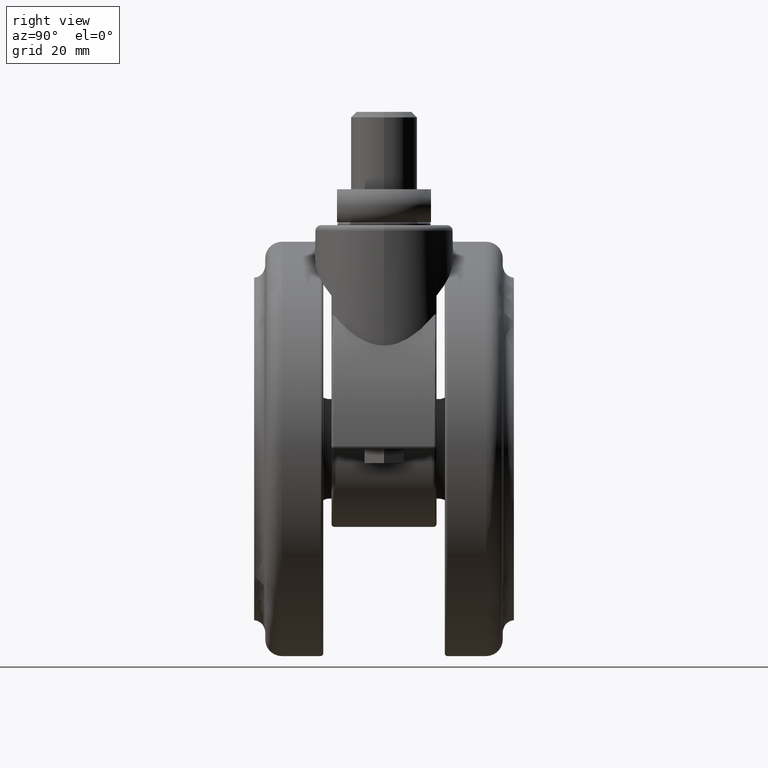
[diagram: clean part render]
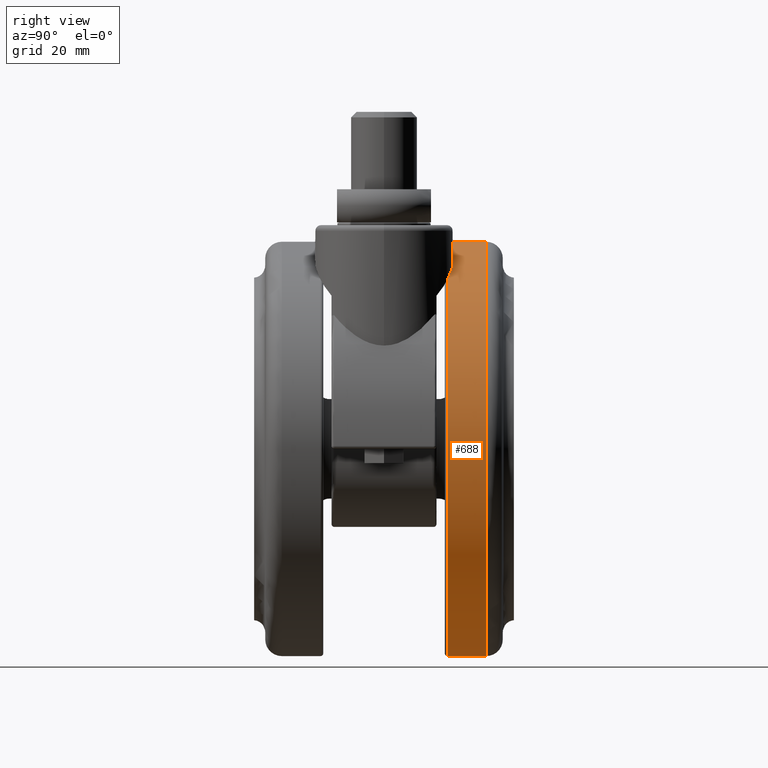
[diagram: same view with one face highlighted and labeled with its STEP entity id]
A machine part, right view. The second image highlights one B-rep face of the part: STEP entity #688.
In plain terms, the highlighted cylindrical surface (partial cylindrical patch) has radius 37.5 mm, axis along (0, 1, 0).
Its self-contained STEP definition (entity closure, byte-faithful):
#391 = EDGE_CURVE ( 'NONE', #2651, #3713, #1343, .T. ) ;
#553 = FACE_OUTER_BOUND ( 'NONE', #1284, .T. ) ;
#688 = ADVANCED_FACE ( 'NONE', ( #553 ), #2105, .T. ) ;
#971 = EDGE_CURVE ( 'NONE', #1869, #2651, #2149, .T. ) ;
#1137 = ORIENTED_EDGE ( 'NONE', *, *, #1977, .T. ) ;
#1250 = VECTOR ( 'NONE', #1729, 1000.000000000000000 ) ;
#1284 = EDGE_LOOP ( 'NONE', ( #1882, #3481, #1137, #1979 ) ) ;
#1343 = LINE ( 'NONE', #2685, #2058 ) ;
#1729 = DIRECTION ( 'NONE',  ( 1.582413479254075000E-015, 1.000000000000000000, 0.0000000000000000000 ) ) ;
#1755 = CARTESIAN_POINT ( 'NONE',  ( -20.00000000000000000, 11.50000000000000000, -78.00000000000000000 ) ) ;
#1772 = CARTESIAN_POINT ( 'NONE',  ( -20.00000000000000000, 3.164826958508150300E-014, -40.50000000000000000 ) ) ;
#1794 = CARTESIAN_POINT ( 'NONE',  ( -20.00000000000000000, 18.50000000000000000, -40.50000000000000000 ) ) ;
#1869 = VERTEX_POINT ( 'NONE', #1755 ) ;
#1872 = DIRECTION ( 'NONE',  ( 0.0000000000000000000, 0.0000000000000000000, -1.000000000000000000 ) ) ;
#1882 = ORIENTED_EDGE ( 'NONE', *, *, #391, .F. ) ;
#1977 = EDGE_CURVE ( 'NONE', #1869, #2777, #2883, .T. ) ;
#1979 = ORIENTED_EDGE ( 'NONE', *, *, #2290, .T. ) ;
#2058 = VECTOR ( 'NONE', #2667, 1000.000000000000000 ) ;
#2094 = CARTESIAN_POINT ( 'NONE',  ( -20.00000000000000000, 18.50000000000000000, -78.00000000000001400 ) ) ;
#2098 = DIRECTION ( 'NONE',  ( 0.0000000000000000000, 0.0000000000000000000, -1.000000000000000000 ) ) ;
#2100 = AXIS2_PLACEMENT_3D ( 'NONE', #1794, #3905, #2098 ) ;
#2105 = CYLINDRICAL_SURFACE ( 'NONE', #3527, 37.50000000000000000 ) ;
#2149 = CIRCLE ( 'NONE', #3460, 37.50000000000000000 ) ;
#2290 = EDGE_CURVE ( 'NONE', #2777, #3713, #2830, .T. ) ;
#2520 = DIRECTION ( 'NONE',  ( 1.582413479254075000E-015, 1.000000000000000000, 0.0000000000000000000 ) ) ;
#2651 = VERTEX_POINT ( 'NONE', #3834 ) ;
#2667 = DIRECTION ( 'NONE',  ( 1.582413479254075000E-015, 1.000000000000000000, 0.0000000000000000000 ) ) ;
#2685 = CARTESIAN_POINT ( 'NONE',  ( -20.00000000000000400, 3.164826958508150900E-014, -3.000000000000002700 ) ) ;
#2775 = DIRECTION ( 'NONE',  ( 0.0000000000000000000, 0.0000000000000000000, -1.000000000000000000 ) ) ;
#2777 = VERTEX_POINT ( 'NONE', #2094 ) ;
#2830 = CIRCLE ( 'NONE', #2100, 37.50000000000000000 ) ;
#2849 = DIRECTION ( 'NONE',  ( -1.582413479254075000E-015, -1.000000000000000000, 0.0000000000000000000 ) ) ;
#2858 = CARTESIAN_POINT ( 'NONE',  ( -20.00000000000000000, 11.50000000000000000, -40.50000000000000000 ) ) ;
#2883 = LINE ( 'NONE', #3076, #1250 ) ;
#3076 = CARTESIAN_POINT ( 'NONE',  ( -20.00000000000000000, 3.164826958508150300E-014, -78.00000000000000000 ) ) ;
#3399 = CARTESIAN_POINT ( 'NONE',  ( -20.00000000000000400, 18.50000000000000000, -3.000000000000000400 ) ) ;
#3460 = AXIS2_PLACEMENT_3D ( 'NONE', #2858, #2849, #2775 ) ;
#3481 = ORIENTED_EDGE ( 'NONE', *, *, #971, .F. ) ;
#3527 = AXIS2_PLACEMENT_3D ( 'NONE', #1772, #2520, #1872 ) ;
#3713 = VERTEX_POINT ( 'NONE', #3399 ) ;
#3834 = CARTESIAN_POINT ( 'NONE',  ( -19.99999999999998200, 11.50000000000000000, -3.000000000000002700 ) ) ;
#3905 = DIRECTION ( 'NONE',  ( -1.582413479254075000E-015, -1.000000000000000000, 0.0000000000000000000 ) ) ;